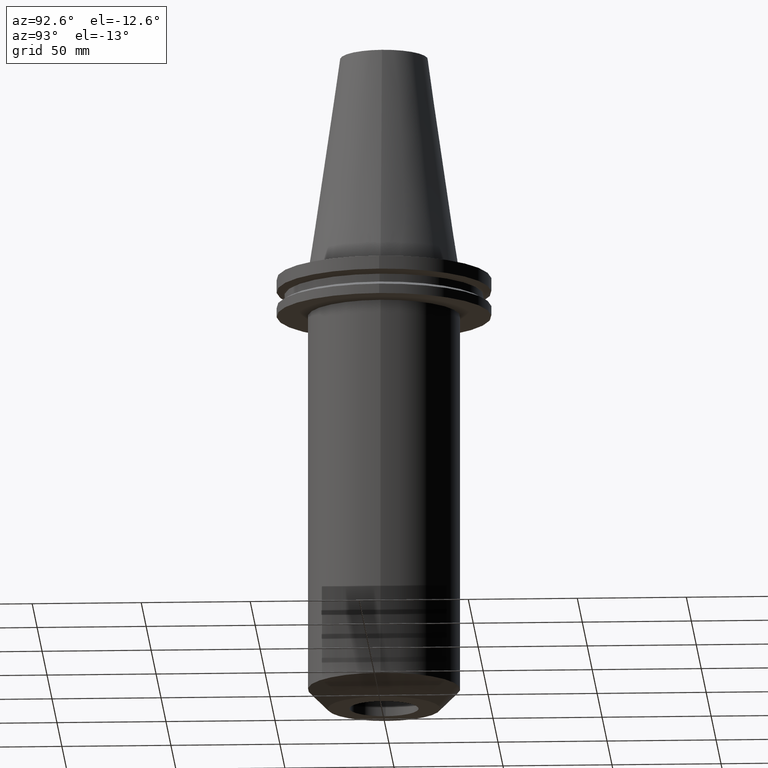
[diagram: clean part render]
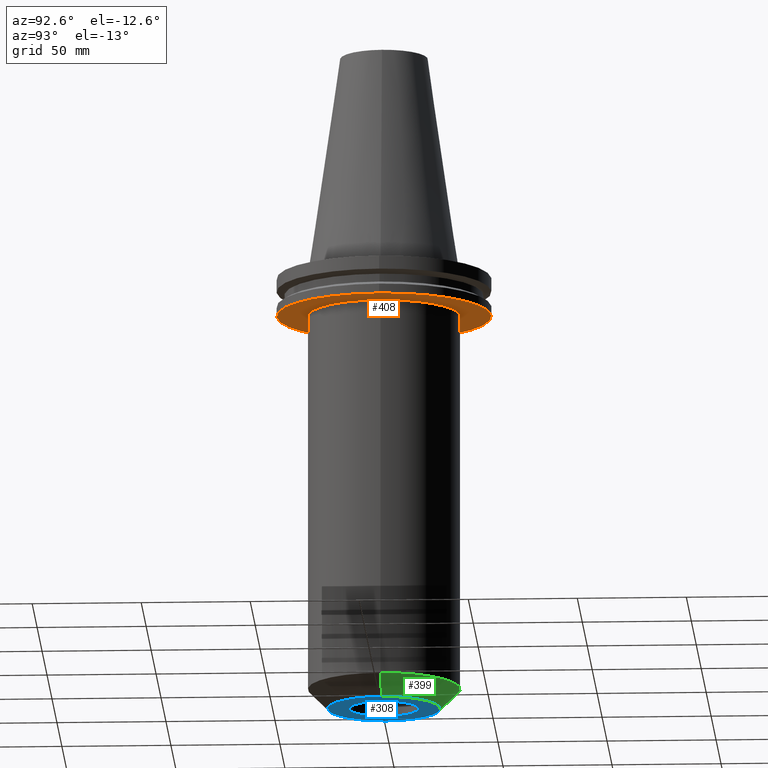
[diagram: same view with three faces highlighted in distinct colors, each labeled with its STEP entity id]
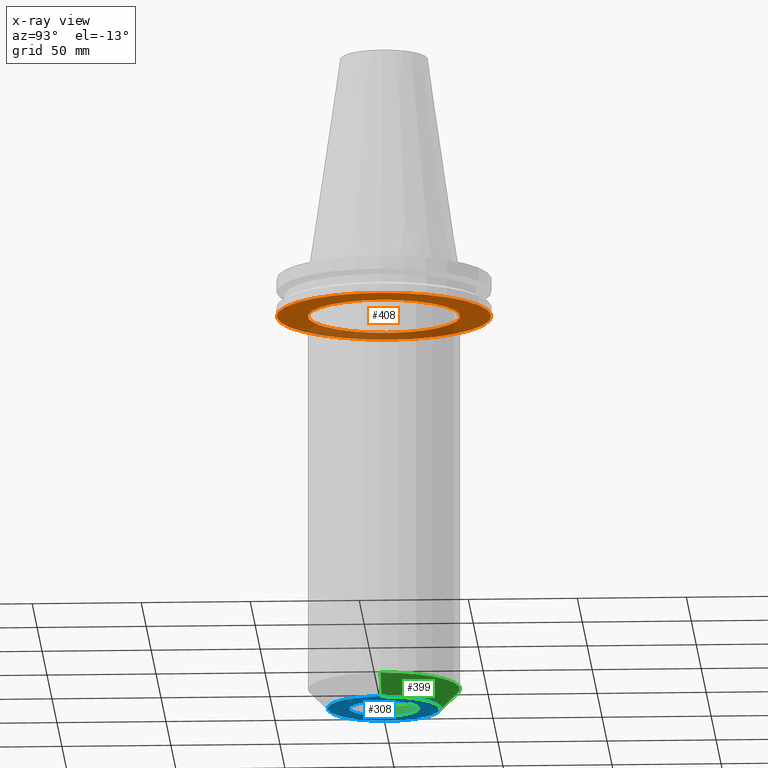
[diagram: x-ray of the same camera — body ghosted, the three highlighted faces saturated]
A machine part, auxiliary view with three faces highlighted in distinct colors.
The next image is the same camera in x-ray (body ghosted, the three faces saturated) — at least one of them is partly hidden behind the body in this view.
Their STEP definitions:

[orange] entity #408 — the highlighted planar face has unit normal (0, -0, 1).
#29 = ORIENTED_EDGE ( 'NONE', *, *, #423, .F. ) ;
#35 = VERTEX_POINT ( 'NONE', #581 ) ;
#52 = DIRECTION ( 'NONE',  ( -0.000000000000000000, -0.000000000000000000, 1.000000000000000000 ) ) ;
#111 = CIRCLE ( 'NONE', #758, 34.92499999999999716 ) ;
#123 = CARTESIAN_POINT ( 'NONE',  ( 0.000000000000000000, 0.000000000000000000, -19.04999999999999716 ) ) ;
#146 = AXIS2_PLACEMENT_3D ( 'NONE', #123, #354, #591 ) ;
#154 = EDGE_CURVE ( 'NONE', #199, #761, #699, .T. ) ;
#192 = CARTESIAN_POINT ( 'NONE',  ( -49.21499999999998920, 6.027099222003697037E-15, -19.04999999999999716 ) ) ;
#199 = VERTEX_POINT ( 'NONE', #192 ) ;
#211 = CARTESIAN_POINT ( 'NONE',  ( -34.92499999999999716, 4.277078946022130887E-15, -19.04999999999999716 ) ) ;
#219 = DIRECTION ( 'NONE',  ( -0.000000000000000000, -0.000000000000000000, 1.000000000000000000 ) ) ;
#226 = DIRECTION ( 'NONE',  ( 0.000000000000000000, -0.000000000000000000, 1.000000000000000000 ) ) ;
#275 = VERTEX_POINT ( 'NONE', #211 ) ;
#297 = DIRECTION ( 'NONE',  ( 1.000000000000000000, 0.000000000000000000, 0.000000000000000000 ) ) ;
#311 = EDGE_LOOP ( 'NONE', ( #29, #374 ) ) ;
#336 = EDGE_LOOP ( 'NONE', ( #702, #692 ) ) ;
#342 = FACE_BOUND ( 'NONE', #336, .T. ) ;
#354 = DIRECTION ( 'NONE',  ( -0.000000000000000000, -0.000000000000000000, 1.000000000000000000 ) ) ;
#357 = AXIS2_PLACEMENT_3D ( 'NONE', #478, #775, #297 ) ;
#374 = ORIENTED_EDGE ( 'NONE', *, *, #154, .F. ) ;
#388 = CARTESIAN_POINT ( 'NONE',  ( 0.000000000000000000, 0.000000000000000000, -19.04999999999999716 ) ) ;
#400 = FACE_OUTER_BOUND ( 'NONE', #311, .T. ) ;
#408 = ADVANCED_FACE ( 'NONE', ( #400, #342 ), #572, .F. ) ;
#410 = CIRCLE ( 'NONE', #146, 34.92499999999999716 ) ;
#423 = EDGE_CURVE ( 'NONE', #761, #199, #732, .T. ) ;
#454 = DIRECTION ( 'NONE',  ( 1.000000000000000000, 0.000000000000000000, 0.000000000000000000 ) ) ;
#464 = DIRECTION ( 'NONE',  ( 1.000000000000000000, 0.000000000000000000, 0.000000000000000000 ) ) ;
#472 = AXIS2_PLACEMENT_3D ( 'NONE', #388, #52, #629 ) ;
#473 = EDGE_CURVE ( 'NONE', #275, #35, #111, .T. ) ;
#478 = CARTESIAN_POINT ( 'NONE',  ( 0.000000000000000000, 0.000000000000000000, -19.04999999999999716 ) ) ;
#514 = CARTESIAN_POINT ( 'NONE',  ( 0.000000000000000000, 49.21499999999998920, -19.04999999999999716 ) ) ;
#572 = PLANE ( 'NONE',  #664 ) ;
#581 = CARTESIAN_POINT ( 'NONE',  ( 34.92499999999999716, 0.000000000000000000, -19.04999999999999716 ) ) ;
#591 = DIRECTION ( 'NONE',  ( 1.000000000000000000, 0.000000000000000000, 0.000000000000000000 ) ) ;
#629 = DIRECTION ( 'NONE',  ( 1.000000000000000000, 0.000000000000000000, 0.000000000000000000 ) ) ;
#650 = EDGE_CURVE ( 'NONE', #35, #275, #410, .T. ) ;
#664 = AXIS2_PLACEMENT_3D ( 'NONE', #514, #226, #464 ) ;
#665 = CARTESIAN_POINT ( 'NONE',  ( 49.21499999999998920, 0.000000000000000000, -19.04999999999999716 ) ) ;
#692 = ORIENTED_EDGE ( 'NONE', *, *, #473, .T. ) ;
#699 = CIRCLE ( 'NONE', #357, 49.21499999999998920 ) ;
#702 = ORIENTED_EDGE ( 'NONE', *, *, #650, .T. ) ;
#732 = CIRCLE ( 'NONE', #472, 49.21499999999998920 ) ;
#755 = CARTESIAN_POINT ( 'NONE',  ( 0.000000000000000000, 0.000000000000000000, -19.04999999999999716 ) ) ;
#758 = AXIS2_PLACEMENT_3D ( 'NONE', #755, #219, #454 ) ;
#761 = VERTEX_POINT ( 'NONE', #665 ) ;
#775 = DIRECTION ( 'NONE',  ( -0.000000000000000000, -0.000000000000000000, 1.000000000000000000 ) ) ;

[blue] entity #308 — the highlighted planar face has unit normal (0, -0, 1).
#46 = ORIENTED_EDGE ( 'NONE', *, *, #529, .T. ) ;
#63 = DIRECTION ( 'NONE',  ( -0.000000000000000000, -0.000000000000000000, 1.000000000000000000 ) ) ;
#77 = CARTESIAN_POINT ( 'NONE',  ( 0.000000000000000000, 0.000000000000000000, -203.1999999999999886 ) ) ;
#90 = DIRECTION ( 'NONE',  ( -0.000000000000000000, -0.000000000000000000, 1.000000000000000000 ) ) ;
#110 = ORIENTED_EDGE ( 'NONE', *, *, #688, .F. ) ;
#136 = DIRECTION ( 'NONE',  ( -0.000000000000000000, -0.000000000000000000, 1.000000000000000000 ) ) ;
#150 = CIRCLE ( 'NONE', #246, 25.82499999999996021 ) ;
#159 = CARTESIAN_POINT ( 'NONE',  ( -15.87500000000000711, 1.944126793646424027E-15, -203.1999999999999886 ) ) ;
#170 = VERTEX_POINT ( 'NONE', #306 ) ;
#246 = AXIS2_PLACEMENT_3D ( 'NONE', #543, #136, #309 ) ;
#250 = CIRCLE ( 'NONE', #285, 15.87500000000000711 ) ;
#269 = DIRECTION ( 'NONE',  ( 0.000000000000000000, -0.000000000000000000, 1.000000000000000000 ) ) ;
#271 = ORIENTED_EDGE ( 'NONE', *, *, #691, .F. ) ;
#278 = EDGE_LOOP ( 'NONE', ( #511, #46 ) ) ;
#285 = AXIS2_PLACEMENT_3D ( 'NONE', #77, #381, #602 ) ;
#306 = CARTESIAN_POINT ( 'NONE',  ( 15.87500000000000711, 0.000000000000000000, -203.1999999999999886 ) ) ;
#308 = ADVANCED_FACE ( 'NONE', ( #310, #615 ), #320, .F. ) ;
#309 = DIRECTION ( 'NONE',  ( 1.000000000000000000, 0.000000000000000000, 0.000000000000000000 ) ) ;
#310 = FACE_OUTER_BOUND ( 'NONE', #315, .T. ) ;
#315 = EDGE_LOOP ( 'NONE', ( #271, #110 ) ) ;
#319 = CARTESIAN_POINT ( 'NONE',  ( 0.000000000000000000, 0.000000000000000000, -203.1999999999999886 ) ) ;
#320 = PLANE ( 'NONE',  #455 ) ;
#350 = DIRECTION ( 'NONE',  ( 1.000000000000000000, 0.000000000000000000, 0.000000000000000000 ) ) ;
#377 = VERTEX_POINT ( 'NONE', #159 ) ;
#381 = DIRECTION ( 'NONE',  ( -0.000000000000000000, -0.000000000000000000, 1.000000000000000000 ) ) ;
#439 = CIRCLE ( 'NONE', #598, 25.82499999999996021 ) ;
#443 = VERTEX_POINT ( 'NONE', #510 ) ;
#455 = AXIS2_PLACEMENT_3D ( 'NONE', #740, #269, #686 ) ;
#501 = CARTESIAN_POINT ( 'NONE',  ( -25.82499999999996021, 3.719864652410083281E-15, -203.1999999999999886 ) ) ;
#510 = CARTESIAN_POINT ( 'NONE',  ( 25.82499999999996021, 0.000000000000000000, -203.1999999999999886 ) ) ;
#511 = ORIENTED_EDGE ( 'NONE', *, *, #690, .T. ) ;
#529 = EDGE_CURVE ( 'NONE', #377, #170, #539, .T. ) ;
#532 = CARTESIAN_POINT ( 'NONE',  ( 0.000000000000000000, 0.000000000000000000, -203.1999999999999886 ) ) ;
#539 = CIRCLE ( 'NONE', #710, 15.87500000000000711 ) ;
#543 = CARTESIAN_POINT ( 'NONE',  ( 0.000000000000000000, 0.000000000000000000, -203.1999999999999886 ) ) ;
#598 = AXIS2_PLACEMENT_3D ( 'NONE', #319, #90, #726 ) ;
#602 = DIRECTION ( 'NONE',  ( 1.000000000000000000, 0.000000000000000000, 0.000000000000000000 ) ) ;
#615 = FACE_BOUND ( 'NONE', #278, .T. ) ;
#686 = DIRECTION ( 'NONE',  ( 1.000000000000000000, 0.000000000000000000, 0.000000000000000000 ) ) ;
#688 = EDGE_CURVE ( 'NONE', #766, #443, #439, .T. ) ;
#690 = EDGE_CURVE ( 'NONE', #170, #377, #250, .T. ) ;
#691 = EDGE_CURVE ( 'NONE', #443, #766, #150, .T. ) ;
#710 = AXIS2_PLACEMENT_3D ( 'NONE', #532, #63, #350 ) ;
#726 = DIRECTION ( 'NONE',  ( 1.000000000000000000, 0.000000000000000000, 0.000000000000000000 ) ) ;
#740 = CARTESIAN_POINT ( 'NONE',  ( 0.000000000000000000, 15.87500000000000711, -203.1999999999999886 ) ) ;
#766 = VERTEX_POINT ( 'NONE', #501 ) ;

[green] entity #399 — the highlighted conical surface has half-angle 45 deg.
#14 = EDGE_CURVE ( 'NONE', #443, #471, #104, .T. ) ;
#20 = AXIS2_PLACEMENT_3D ( 'NONE', #544, #84, #506 ) ;
#49 = DIRECTION ( 'NONE',  ( 1.000000000000000000, 0.000000000000000000, 0.000000000000000000 ) ) ;
#65 = ORIENTED_EDGE ( 'NONE', *, *, #691, .T. ) ;
#84 = DIRECTION ( 'NONE',  ( -0.000000000000000000, -0.000000000000000000, 1.000000000000000000 ) ) ;
#85 = CONICAL_SURFACE ( 'NONE', #720, 25.82499999999996021, 0.7853981633974509435 ) ;
#104 = LINE ( 'NONE', #225, #762 ) ;
#107 = CARTESIAN_POINT ( 'NONE',  ( 0.000000000000000000, 0.000000000000000000, -203.1999999999999886 ) ) ;
#115 = DIRECTION ( 'NONE',  ( 0.7071067811865493491, 0.000000000000000000, 0.7071067811865456854 ) ) ;
#136 = DIRECTION ( 'NONE',  ( -0.000000000000000000, -0.000000000000000000, 1.000000000000000000 ) ) ;
#150 = CIRCLE ( 'NONE', #246, 25.82499999999996021 ) ;
#176 = EDGE_CURVE ( 'NONE', #766, #538, #302, .T. ) ;
#223 = FACE_OUTER_BOUND ( 'NONE', #655, .T. ) ;
#225 = CARTESIAN_POINT ( 'NONE',  ( 25.82499999999996021, 0.000000000000000000, -203.1999999999999886 ) ) ;
#246 = AXIS2_PLACEMENT_3D ( 'NONE', #543, #136, #309 ) ;
#266 = ORIENTED_EDGE ( 'NONE', *, *, #176, .T. ) ;
#274 = DIRECTION ( 'NONE',  ( -0.000000000000000000, -0.000000000000000000, 1.000000000000000000 ) ) ;
#283 = VECTOR ( 'NONE', #536, 1000.000000000000000 ) ;
#302 = LINE ( 'NONE', #644, #283 ) ;
#309 = DIRECTION ( 'NONE',  ( 1.000000000000000000, 0.000000000000000000, 0.000000000000000000 ) ) ;
#312 = EDGE_CURVE ( 'NONE', #471, #538, #585, .T. ) ;
#328 = ORIENTED_EDGE ( 'NONE', *, *, #14, .F. ) ;
#332 = CARTESIAN_POINT ( 'NONE',  ( 34.92500000000000426, 0.000000000000000000, -194.0999999999999943 ) ) ;
#399 = ADVANCED_FACE ( 'NONE', ( #223 ), #85, .T. ) ;
#413 = CARTESIAN_POINT ( 'NONE',  ( -34.92500000000000426, 4.277078946022131676E-15, -194.0999999999999943 ) ) ;
#420 = ORIENTED_EDGE ( 'NONE', *, *, #312, .F. ) ;
#443 = VERTEX_POINT ( 'NONE', #510 ) ;
#471 = VERTEX_POINT ( 'NONE', #332 ) ;
#501 = CARTESIAN_POINT ( 'NONE',  ( -25.82499999999996021, 3.719864652410083281E-15, -203.1999999999999886 ) ) ;
#506 = DIRECTION ( 'NONE',  ( 1.000000000000000000, 0.000000000000000000, 0.000000000000000000 ) ) ;
#510 = CARTESIAN_POINT ( 'NONE',  ( 25.82499999999996021, 0.000000000000000000, -203.1999999999999886 ) ) ;
#536 = DIRECTION ( 'NONE',  ( -0.7071067811865493491, 8.659560562354955045E-17, 0.7071067811865456854 ) ) ;
#538 = VERTEX_POINT ( 'NONE', #413 ) ;
#543 = CARTESIAN_POINT ( 'NONE',  ( 0.000000000000000000, 0.000000000000000000, -203.1999999999999886 ) ) ;
#544 = CARTESIAN_POINT ( 'NONE',  ( 0.000000000000000000, 0.000000000000000000, -194.0999999999999943 ) ) ;
#585 = CIRCLE ( 'NONE', #20, 34.92500000000000426 ) ;
#644 = CARTESIAN_POINT ( 'NONE',  ( -25.82499999999996021, 3.162650358798034491E-15, -203.1999999999999886 ) ) ;
#655 = EDGE_LOOP ( 'NONE', ( #65, #266, #420, #328 ) ) ;
#691 = EDGE_CURVE ( 'NONE', #443, #766, #150, .T. ) ;
#720 = AXIS2_PLACEMENT_3D ( 'NONE', #107, #274, #49 ) ;
#762 = VECTOR ( 'NONE', #115, 1000.000000000000000 ) ;
#766 = VERTEX_POINT ( 'NONE', #501 ) ;